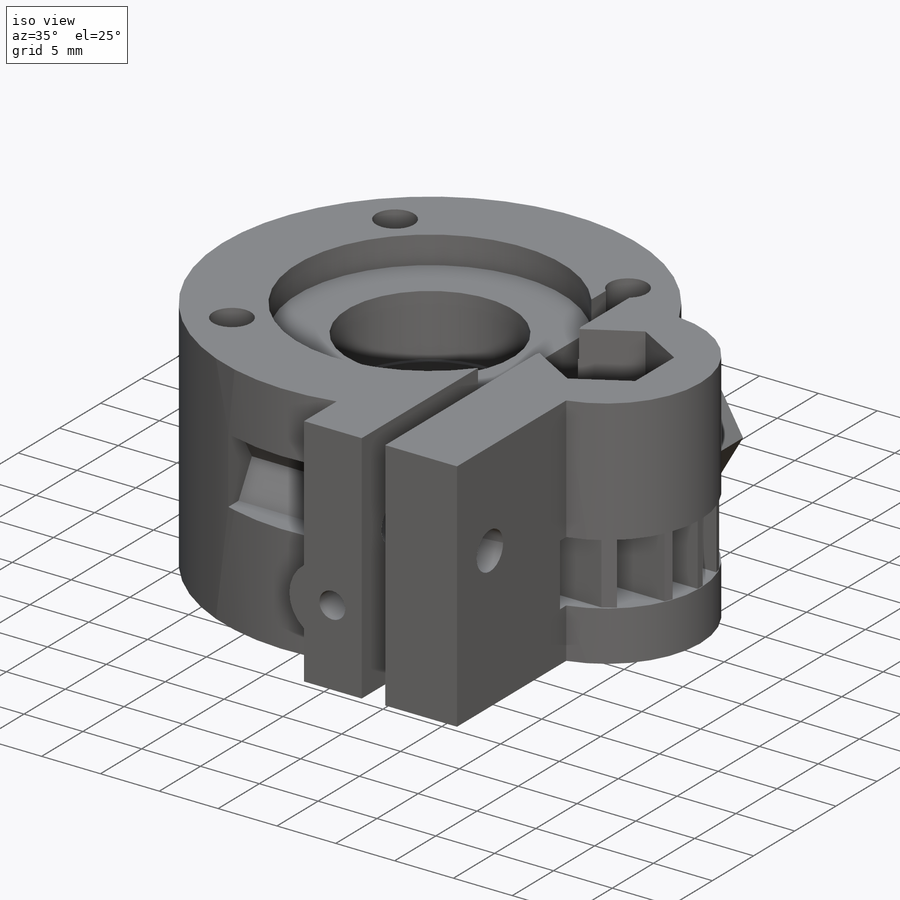
[diagram: iso view]
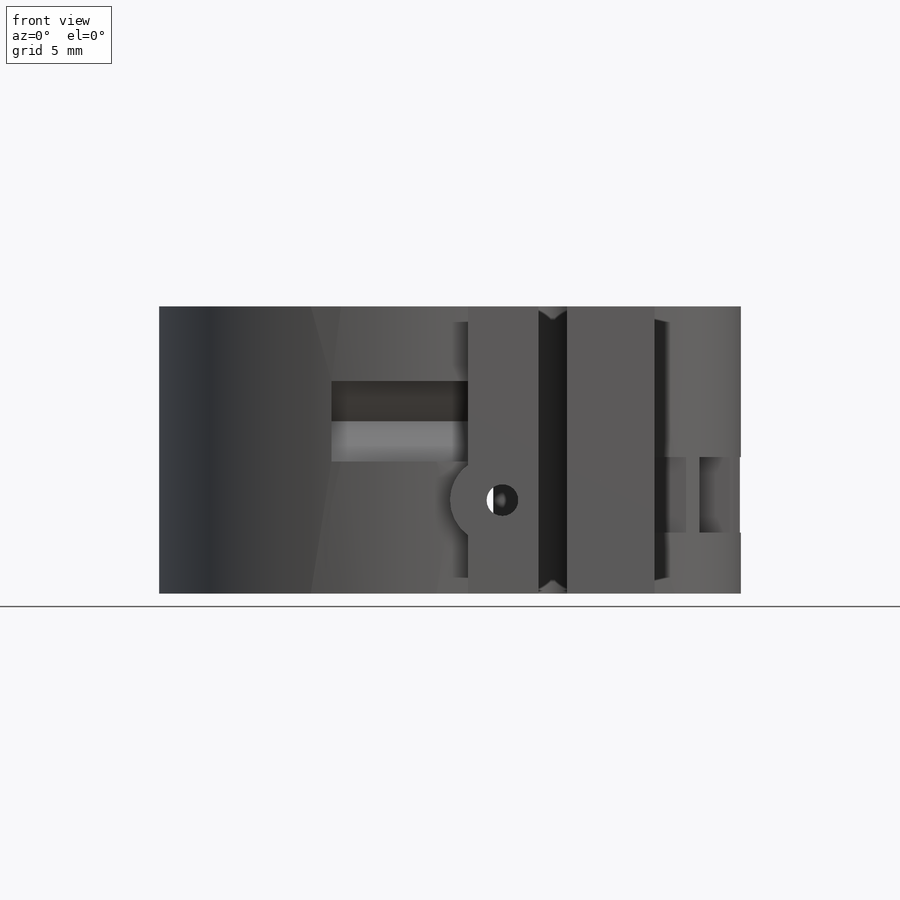
[diagram: front view]
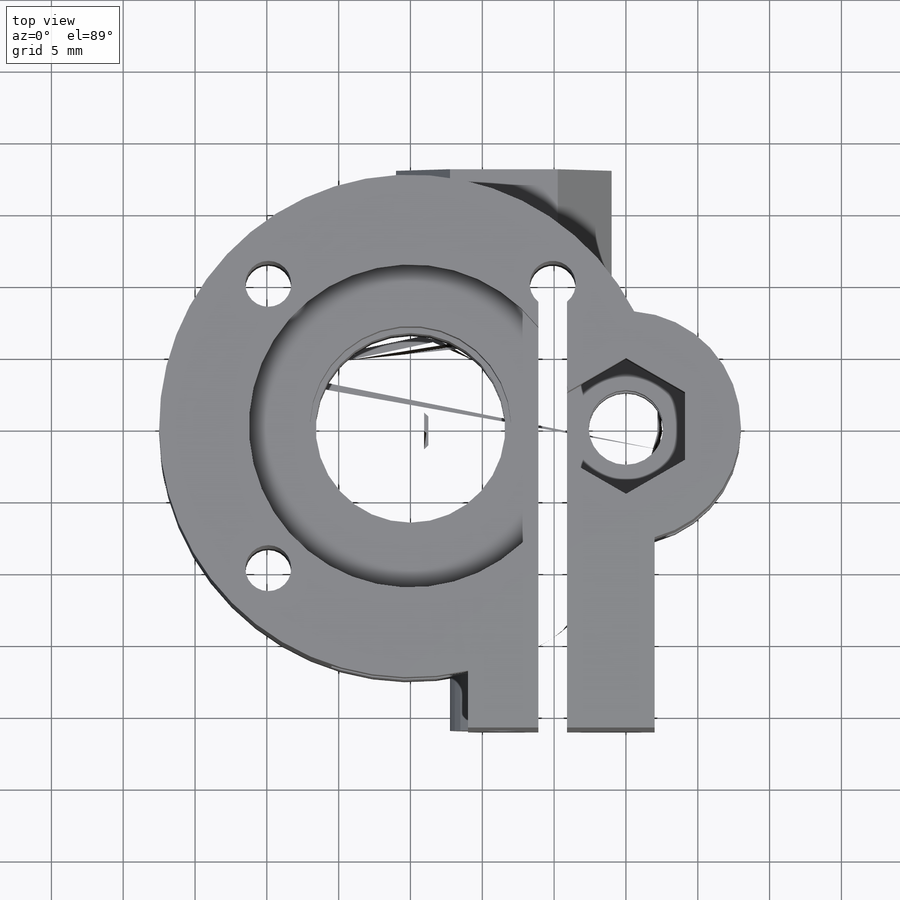
[diagram: top view]
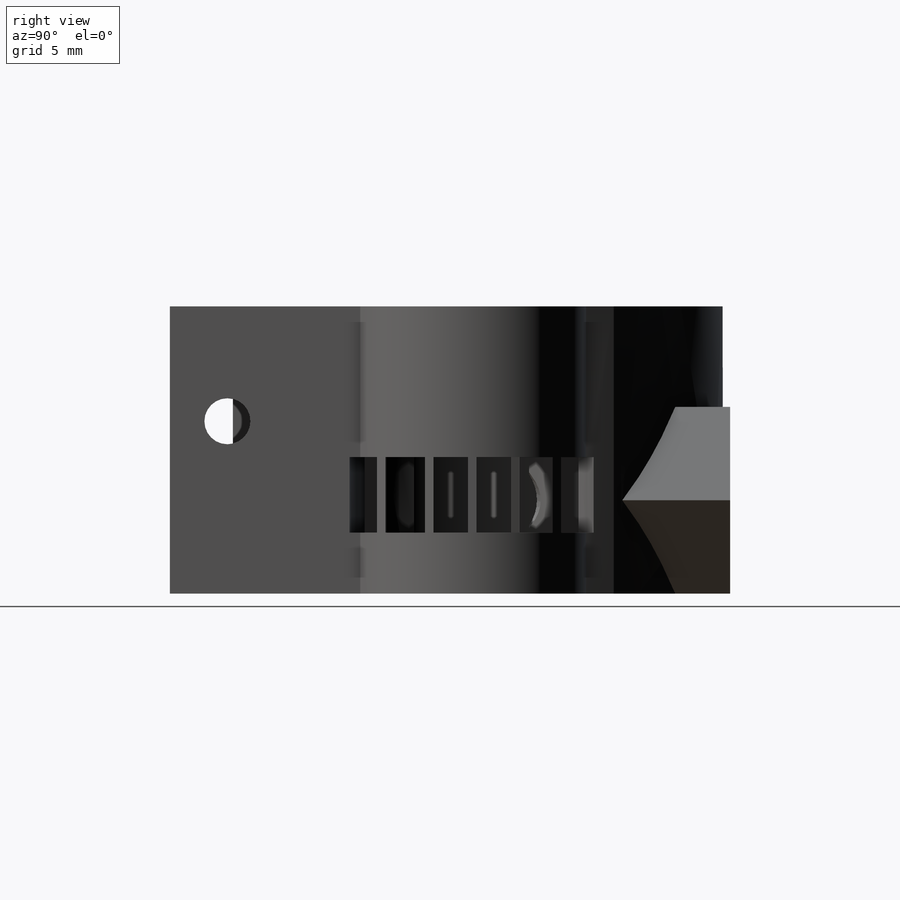
[diagram: right view]
SOLIDWORKS PART (.sldprt)
format: sldprt  version: not decoded by parser v0  size: 535,040 bytes
history: native  units: mm
features: sketch x14, cut_extrude x9, extrude x4, plane x3, material x1, cut_revolve x1 (+13 scaffold rows collapsed)
feature tree (45):
  scaffold x13  (default folders/planes/origin — collapsed)
  material  "ABS"
  plane  "Plane1"  Offset=4.25mm
  plane  "Plane2"  Offset=18mm
  plane  "Plane3"  Offset=6.5mm
  sketch  "Sketch1"  dims[c1.D1=35.0mm c1.D2=16.0mm c1.D3=15.0mm c1.D4=4.0mm c1.D5=7.0mm c1.D6=14.0mm c1.D7=13.0mm c2.D5=21.0mm]
  extrude  "Boss-Extrude1"  Depth=20mm
  sketch  "Sketch2"  dims[D1=13.2mm D2=3.2mm D4=5.2mm D3=14.0mm D5=2.0mm]
  cut_extrude  "Cut-Extrude1"  [1 undecoded]
  sketch  "Sketch3"  dims[D1=22.5mm]
  cut_extrude  "Cut-Extrude2"  Depth=2.35mm
  sketch  "Sketch4"  dims[D1=14.0mm]
  cut_extrude  "Cut-Extrude3"  Depth=5.25mm
  sketch  "Sketch5"  dims[D1=~4.730829mm D2=4.7mm]
  cut_extrude  "Cut-Extrude4"  Depth=6mm
  sketch  "Sketch6"  dims[D1=17.0mm D2=8.0mm D3=10.0mm]
  cut_extrude  "Cut-Extrude5"  Depth=5.25mm
  sketch  "Sketch10"  dims[c1.D1=6.0mm c1.D2=6.0mm c1.D3=6.0mm c2.D2=6.5mm c2.D3=5.75mm]
  extrude  "Boss-Extrude2"  [1 undecoded]
  sketch  "Sketch11"  dims[D3=15.0mm D1=6.5mm D2=6.5mm]
  extrude  "Boss-Extrude3"  [1 undecoded]
  sketch  "Sketch8"  dims[c1.D1=2.2mm c1.D2=1.1mm c1.D3=2.2mm c2.D2=2.5mm c2.D3=6.5mm]
  cut_extrude  "Cut-Extrude6"  [1 undecoded]
  sketch  "Sketch13"  dims[c1.D1=3.0mm c1.D2=0.5mm c1.D3=3.0mm c1.D4=6.0mm c1.D5=3.0mm c2.D5=40.0deg]
  cut_revolve  "Cut-Revolve1"  Angle=360deg
  sketch  "Sketch14"  dims[D1=4.5mm]
  cut_extrude  "Cut-Extrude7"  Depth=5mm
  sketch  "Sketch15"  dims[c1.D1=3.2mm c1.D2=3.2mm c1.D3=3.2mm c2.D2=12.0mm c2.D3=17.0mm]
  cut_extrude  "Cut-Extrude8"  [1 undecoded]
  sketch  "Sketch16"  dims[D1=5.6mm]
  cut_extrude  "Cut-Extrude9"  Depth=1.5mm
  sketch  "Sketch17"  dims[c1.D1=17.0mm c1.D8=16.0mm c1.D2=8.0mm c1.D3=0.5mm c1.D4=3.0mm c1.D5=3.0mm c1.D6=3.0mm c1.D7=3.0mm c2.D3=0.6mm c2.D8=0.6mm c2.D9=0.6mm c2.D10=0.6mm c2.D11=0.7mm]
  extrude  "Boss-Extrude4"  [1 undecoded]
decode coverage: 22 of 28 modeling features carry decoded parameters
note: ~ marks probable driven/reference dimensions
note: 6 parameter values undecoded
summary: no parameter record found for 6 features
note: suppression state not decoded; provenance and decode notes live in map.json
